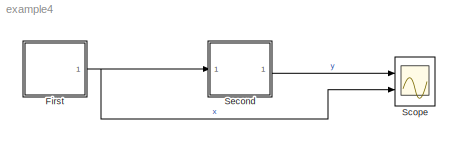
MODEL example4
KIND model
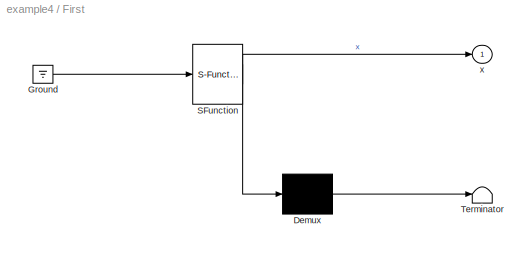
BLOCK [SubSystem] First
  BlockKeywords = __PRM__SERIALIZED__DATA__:Stateflow Chart,Stateflow Diagram
  ErrorFcn = Stateflow.Translate.translate
  PermitHierarchicalResolution = ExplicitOnly
  Ports = [0, 1]
  RequestExecContextInheritance = off
  SFBlockType = Chart
  SID = 1
  TreatAsAtomicUnit = on
BLOCK [Demux] First/ Demux 
  Outputs = 1
  Ports = [1, 1]
  SID = 1::94
BLOCK [Ground] First/ Ground 
  SID = 1::96
BLOCK [S-Function] First/ SFunction 
  EnableBusSupport = on
  FunctionName = sf_sfun
  PortCounts = [1 2]
  Ports = [1, 2]
  SFcnIsStateOwnerBlock = off
  SFunctionDeploymentMode = off
  SID = 1::93
  Tag = Stateflow S-Function example4 3
BLOCK [Terminator] First/ Terminator 
  SID = 1::95
BLOCK [Outport] First/x
  IconDisplay = Port number
  SID = 1::97
BLOCK [Scope] Scope
  Floating = off
  NumInputPorts = 2
  Ports = [2]
  SID = 4
  ScopeSpecificationString = Simulink.scopes.TimeScopeBlockCfg('CurrentConfiguration', extmgr.ConfigurationSet(extmgr.Configuration('Core','General UI',true),extmgr.Configuration('Core','Source UI',true),extmgr.Configuration('Sources','WiredSimulink',true),extmgr.Configuration('Visuals','Time Domain',true,'SerializedDisplays',{struct('MinYLimReal','-1.25','MaxYLimReal','31.25','YLabelReal','','MinYLimMag','0.00000','MaxYLimMa...<+1874ch>
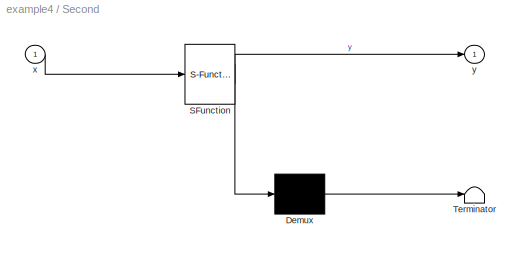
BLOCK [SubSystem] Second
  BlockKeywords = __PRM__SERIALIZED__DATA__:Stateflow Chart,Stateflow Diagram
  ErrorFcn = Stateflow.Translate.translate
  PermitHierarchicalResolution = ExplicitOnly
  Ports = [1, 1]
  RequestExecContextInheritance = off
  SFBlockType = Chart
  SID = 2
  TreatAsAtomicUnit = on
BLOCK [Demux] Second/ Demux 
  Outputs = 1
  Ports = [1, 1]
  SID = 2::94
BLOCK [S-Function] Second/ SFunction 
  EnableBusSupport = on
  FunctionName = sf_sfun
  PortCounts = [1 2]
  Ports = [1, 2]
  SFcnIsStateOwnerBlock = off
  SFunctionDeploymentMode = off
  SID = 2::93
  Tag = Stateflow S-Function example4 1
BLOCK [Terminator] Second/ Terminator 
  SID = 2::95
BLOCK [Inport] Second/x
  IconDisplay = Port number
  SID = 2::97
BLOCK [Outport] Second/y
  IconDisplay = Port number
  SID = 2::98
LINE First/ Demux :1 -> First/ Terminator :1
LINE First/ Ground :1 -> First/ SFunction :1
LINE First/ SFunction :1 -> First/ Demux :1
LINE First/ SFunction :2 -> First/x:1
NET First:1 -> Scope:2, Second:1
LINE Second/ Demux :1 -> Second/ Terminator :1
LINE Second/ SFunction :1 -> Second/ Demux :1
LINE Second/ SFunction :2 -> Second/y:1
LINE Second/x:1 -> Second/ SFunction :1
LINE Second:1 -> Scope:1
note: NET lines group one-source signal fan-out (src -> all destinations, sorted); 1:1 wires keep LINE
CHART Second states=2 transitions=3
  STATE_LABEL 'On\\nen: y = 2 * x'
  STATE_LABEL 'Off\\nen: y = y + 10'
CHART First states=2 transitions=3
  STATE_LABEL 'On\\nen: x = x + 1'
  STATE_LABEL 'Off\\nen: x = x + 1'
